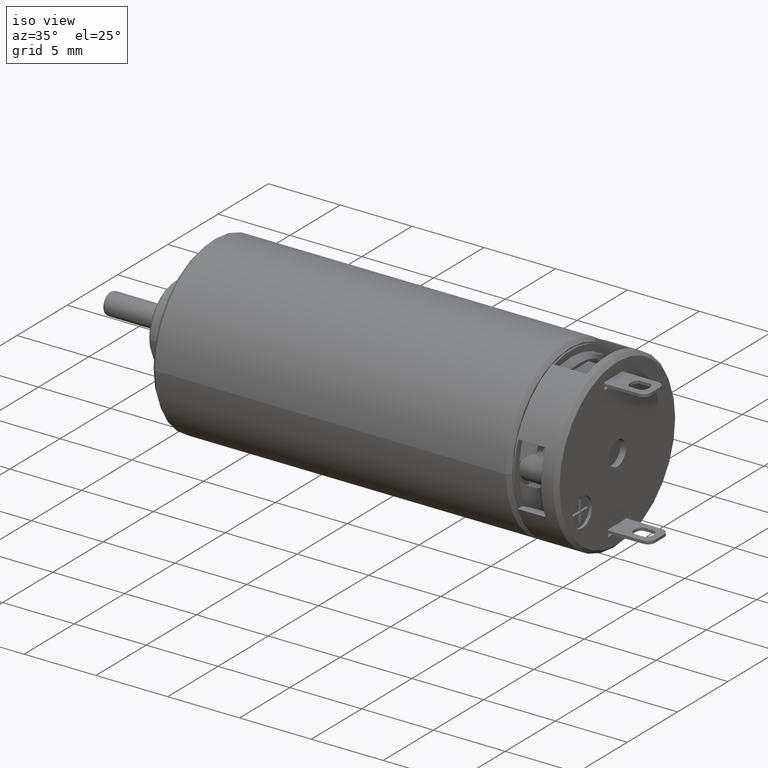
[diagram: clean part render]
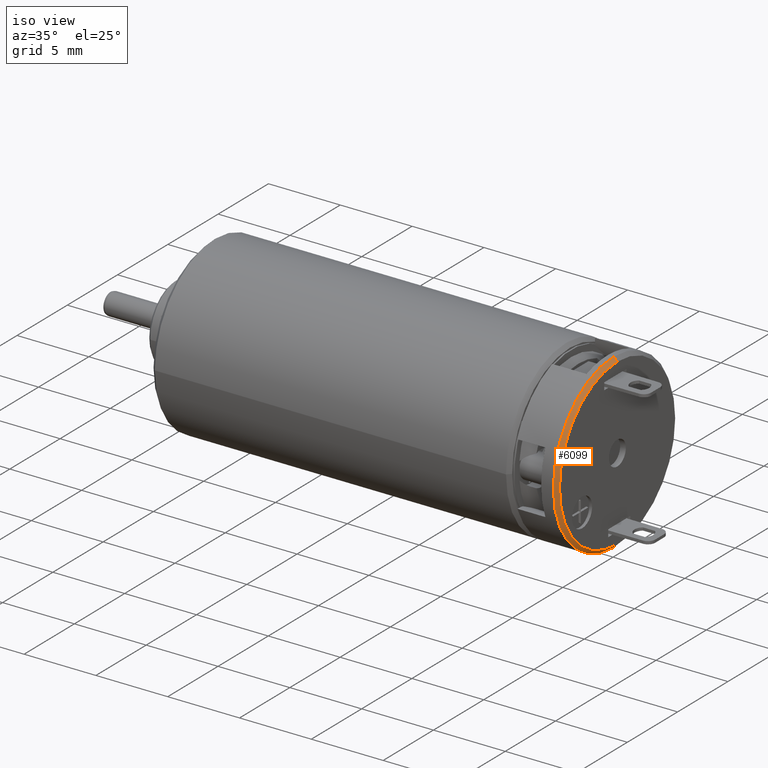
[diagram: same view with one face highlighted and labeled with its STEP entity id]
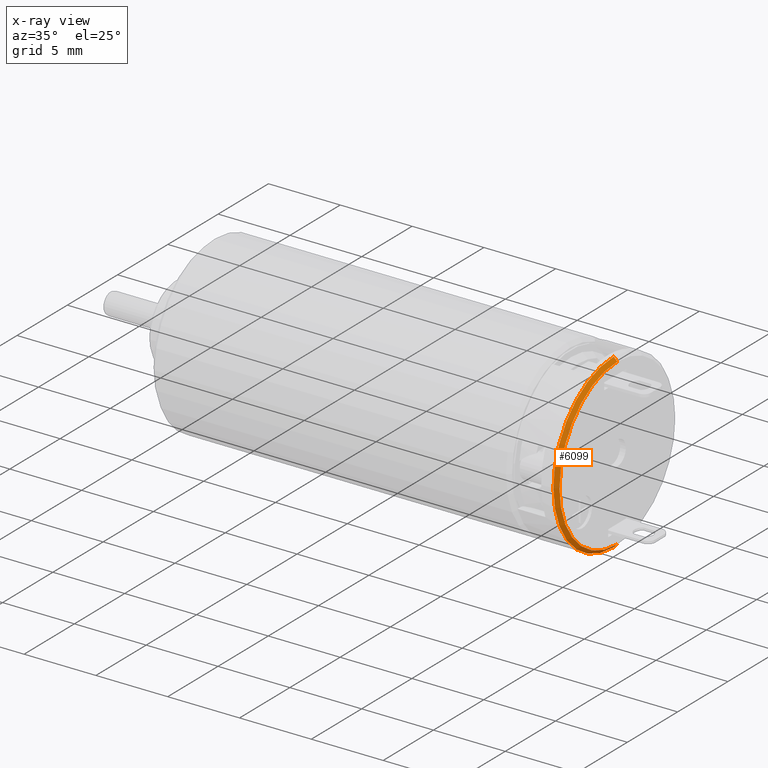
[diagram: x-ray of the same camera — body ghosted, the highlighted face saturated]
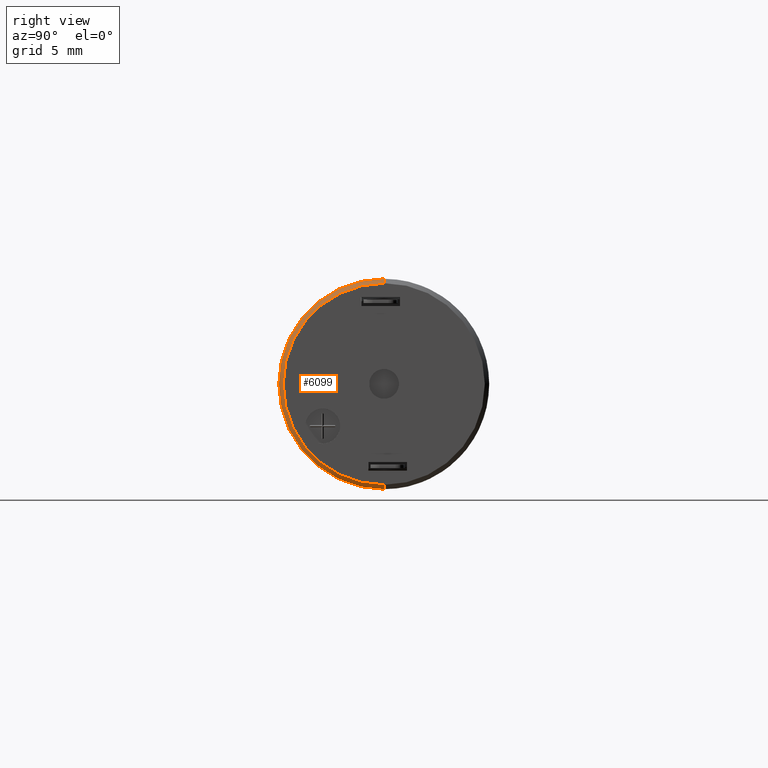
[diagram: same view with one face highlighted and labeled with its STEP entity id]
A machine part, iso view. The second image highlights one B-rep face of the part: STEP entity #6099.
The next image is the same camera in x-ray: the body ghosted, the highlighted face saturated — about 0% of this face is hidden behind the body in this view.
A second angle (right view) of the same face is appended — the face is thin or edge-on in the first view.
In plain terms, the highlighted conical surface has half-angle 45 deg.
Its self-contained STEP definition (entity closure, byte-faithful):
#1660=CARTESIAN_POINT('',(2.029999956925E1,-1.846669443215E-14,0.E0));
#1661=DIRECTION('',(-1.E0,0.E0,0.E0));
#1662=DIRECTION('',(0.E0,0.E0,-1.E0));
#1663=AXIS2_PLACEMENT_3D('',#1660,#1661,#1662);
#1690=CARTESIAN_POINT('',(2.004999955053E1,-1.843607927101E-14,0.E0));
#1691=DIRECTION('',(-1.E0,0.E0,0.E0));
#1692=DIRECTION('',(0.E0,0.E0,-1.E0));
#1693=AXIS2_PLACEMENT_3D('',#1690,#1691,#1692);
#1695=DIRECTION('',(7.071066046052E-1,-1.027814802158E-10,-7.071069577678E-1));
#1696=VECTOR('',#1695,3.535533905965E-1);
#1697=CARTESIAN_POINT('',(2.004999977526E1,-1.308154441973E-10,
5.999999775242E0));
#1698=LINE('',#1697,#1696);
#1699=DIRECTION('',(-7.071066046052E-1,-1.039481550989E-10,-7.071069577678E-1));
#1700=VECTOR('',#1699,3.535533905965E-1);
#1701=CARTESIAN_POINT('',(2.029999971284E1,1.690565828770E-10,
-5.749999712809E0));
#1702=LINE('',#1701,#1700);
#3541=CARTESIAN_POINT('',(2.004999977526E1,1.323053601955E-10,
-5.999999775242E0));
#3542=VERTEX_POINT('',#3541);
#3543=CARTESIAN_POINT('',(2.004999955053E1,-1.235609479572E-12,
5.999999550485E0));
#3544=VERTEX_POINT('',#3543);
#3664=CARTESIAN_POINT('',(2.029999956925E1,0.E0,5.749999569214E0));
#3665=CARTESIAN_POINT('',(2.029999956925E1,0.E0,-5.749999569214E0));
#3666=VERTEX_POINT('',#3664);
#3667=VERTEX_POINT('',#3665);
#6088=CARTESIAN_POINT('',(2.017499955989E1,-1.845138685158E-14,0.E0));
#6089=DIRECTION('',(-1.E0,0.E0,0.E0));
#6090=DIRECTION('',(0.E0,-1.E0,0.E0));
#6091=AXIS2_PLACEMENT_3D('',#6088,#6089,#6090);
#6092=CONICAL_SURFACE('',#6091,5.874999559849E0,4.499999570785E1);
#6093=ORIENTED_EDGE('',*,*,#5775,.T.);
#6094=ORIENTED_EDGE('',*,*,#6083,.T.);
#6095=ORIENTED_EDGE('',*,*,#6038,.F.);
#6096=ORIENTED_EDGE('',*,*,#6080,.T.);
#6097=EDGE_LOOP('',(#6093,#6094,#6095,#6096));
#6098=FACE_OUTER_BOUND('',#6097,.F.);
#6099=ADVANCED_FACE('',(#6098),#6092,.T.);
#1664=CIRCLE('',#1663,5.749999569214E0);
#1694=CIRCLE('',#1693,5.999999550485E0);
#5775=EDGE_CURVE('',#3542,#3544,#1694,.T.);
#6038=EDGE_CURVE('',#3667,#3666,#1664,.T.);
#6080=EDGE_CURVE('',#3667,#3542,#1702,.T.);
#6083=EDGE_CURVE('',#3544,#3666,#1698,.T.);